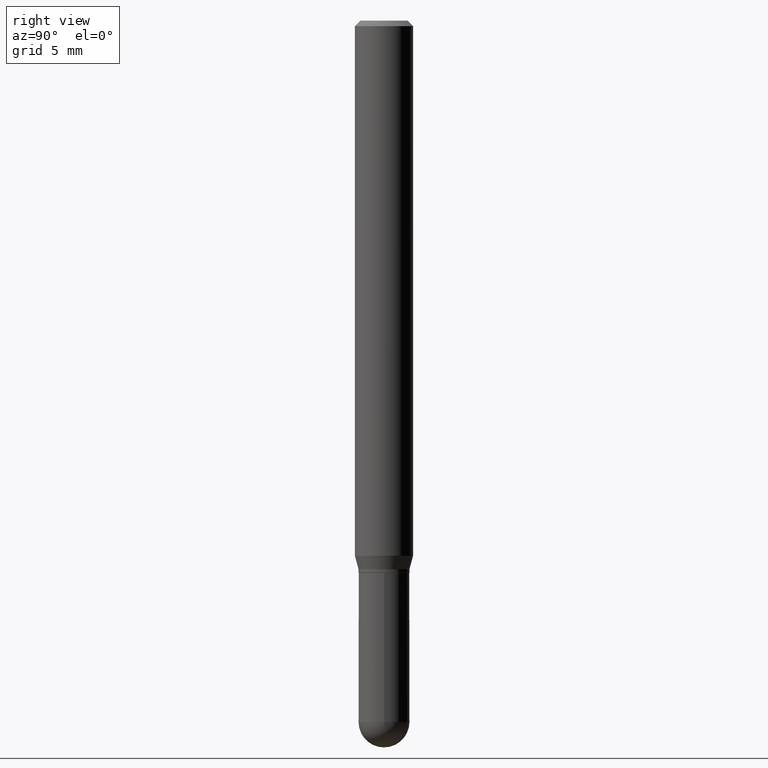
[diagram: clean part render]
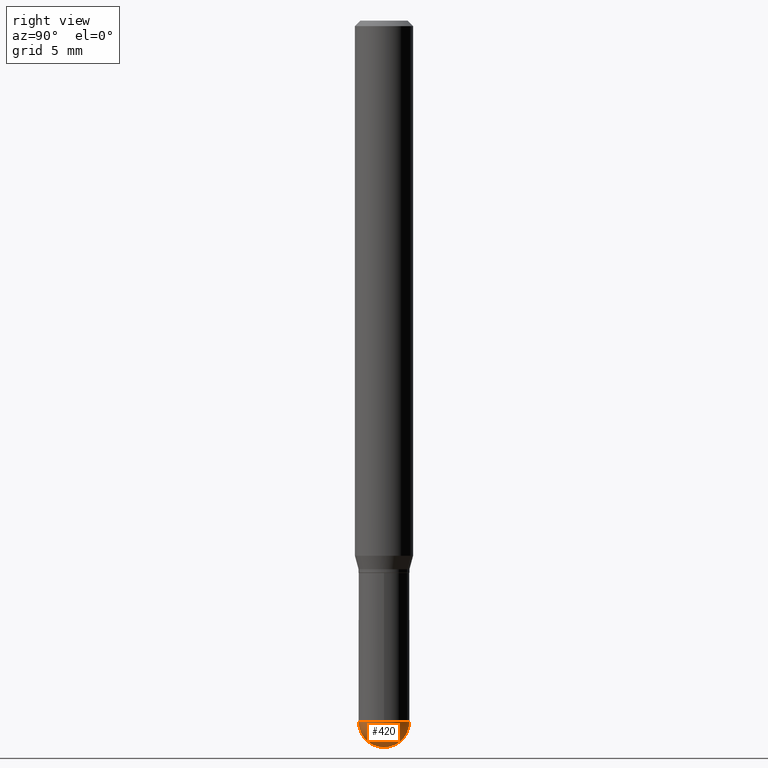
[diagram: same view with one face highlighted and labeled with its STEP entity id]
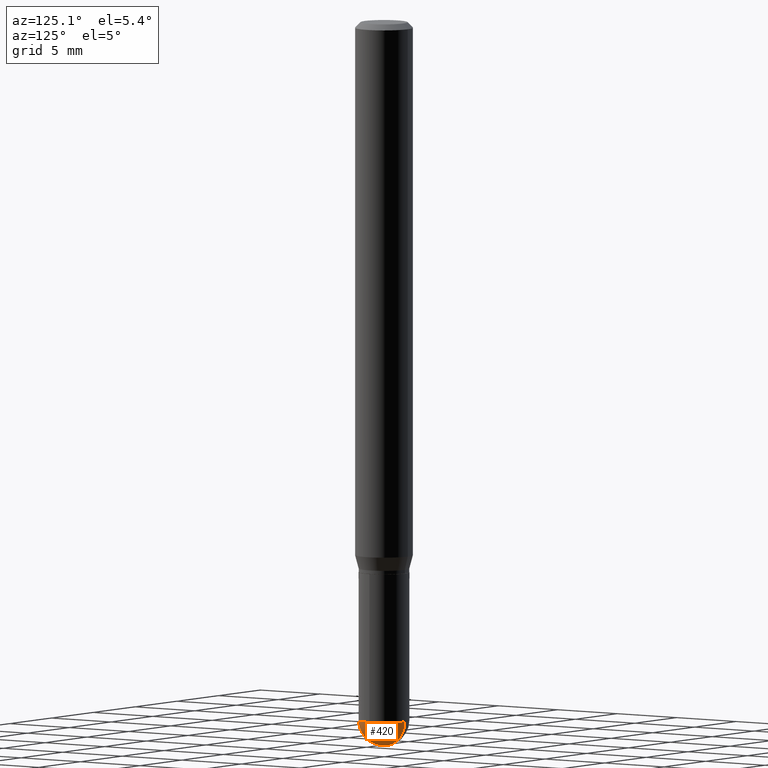
[diagram: same view with one face highlighted and labeled with its STEP entity id]
A machine part, right view. The second image highlights one B-rep face of the part: STEP entity #420.
A second angle (auxiliary view) of the same face is appended — the face is thin or edge-on in the first view.
In plain terms, the highlighted spherical surface has radius 1.7501 mm.
Its self-contained STEP definition (entity closure, byte-faithful):
#15 = AXIS2_PLACEMENT_3D ( 'NONE', #104, #501, #149 ) ;
#30 = VERTEX_POINT ( 'NONE', #32 ) ;
#32 = CARTESIAN_POINT ( 'NONE',  ( 0.06890000000000008618, -6.409137719647418882E-15, -1.899600000000000177 ) ) ;
#37 = VERTEX_POINT ( 'NONE', #353 ) ;
#44 = ORIENTED_EDGE ( 'NONE', *, *, #173, .T. ) ;
#45 = CIRCLE ( 'NONE', #257, 0.06889999999999996128 ) ;
#47 = DIRECTION ( 'NONE',  ( -1.000000000000000000, 7.105427357601001070E-15, -4.926315508542082329E-29 ) ) ;
#53 = AXIS2_PLACEMENT_3D ( 'NONE', #272, #310, #276 ) ;
#73 = DIRECTION ( 'NONE',  ( -7.105427357601001859E-15, -1.000000000000000000, 0.000000000000000000 ) ) ;
#76 = ORIENTED_EDGE ( 'NONE', *, *, #299, .F. ) ;
#96 = CARTESIAN_POINT ( 'NONE',  ( 4.645412544229285965E-29, -6.632417951266439838E-15, -1.899600000000000177 ) ) ;
#104 = CARTESIAN_POINT ( 'NONE',  ( 4.679918503997674770E-29, -6.583003452920844326E-15, -1.899600000000000177 ) ) ;
#129 = AXIS2_PLACEMENT_3D ( 'NONE', #335, #47, #73 ) ;
#144 = DIRECTION ( 'NONE',  ( 6.982962677686265922E-15, 1.000000000000000000, 0.000000000000000000 ) ) ;
#149 = DIRECTION ( 'NONE',  ( 6.982962677686265922E-15, 1.000000000000000000, -3.964946289788482474E-15 ) ) ;
#151 = CARTESIAN_POINT ( 'NONE',  ( 4.679918503997674770E-29, -6.583003452920844326E-15, -1.899600000000000177 ) ) ;
#161 = EDGE_LOOP ( 'NONE', ( #320, #44, #186, #76 ) ) ;
#173 = EDGE_CURVE ( 'NONE', #438, #325, #45, .T. ) ;
#186 = ORIENTED_EDGE ( 'NONE', *, *, #285, .F. ) ;
#225 = DIRECTION ( 'NONE',  ( 1.000000000000000000, -6.982962677686273021E-15, 0.000000000000000000 ) ) ;
#245 = CARTESIAN_POINT ( 'NONE',  ( 4.851357352610053575E-29, -6.819347608944073688E-15, -1.968500000000000139 ) ) ;
#253 = EDGE_CURVE ( 'NONE', #438, #37, #473, .T. ) ;
#257 = AXIS2_PLACEMENT_3D ( 'NONE', #151, #431, #144 ) ;
#262 = DIRECTION ( 'NONE',  ( -2.445468806185136597E-29, 3.491481338843145583E-15, 1.000000000000000000 ) ) ;
#264 = FACE_OUTER_BOUND ( 'NONE', #161, .T. ) ;
#272 = CARTESIAN_POINT ( 'NONE',  ( 4.645412544229285965E-29, -6.632417951266439838E-15, -1.899600000000000177 ) ) ;
#276 = DIRECTION ( 'NONE',  ( 1.000000000000000000, -6.982962677686273021E-15, 0.000000000000000000 ) ) ;
#285 = EDGE_CURVE ( 'NONE', #30, #325, #448, .T. ) ;
#288 = CIRCLE ( 'NONE', #53, 0.06890000000000007230 ) ;
#299 = EDGE_CURVE ( 'NONE', #37, #30, #288, .T. ) ;
#310 = DIRECTION ( 'NONE',  ( -2.445468806185136597E-29, 3.491481338843145583E-15, 1.000000000000000000 ) ) ;
#320 = ORIENTED_EDGE ( 'NONE', *, *, #253, .F. ) ;
#325 = VERTEX_POINT ( 'NONE', #455 ) ;
#335 = CARTESIAN_POINT ( 'NONE',  ( 4.679918503997674770E-29, -6.583003452920844326E-15, -1.899600000000000177 ) ) ;
#353 = CARTESIAN_POINT ( 'NONE',  ( -4.895639449386624073E-16, -0.06890000000000662261, -1.899599999999999955 ) ) ;
#420 = ADVANCED_FACE ( 'NONE', ( #264 ), #457, .T. ) ;
#431 = DIRECTION ( 'NONE',  ( 1.000000000000000000, -6.982962677686265922E-15, 4.883557194083112340E-29 ) ) ;
#438 = VERTEX_POINT ( 'NONE', #245 ) ;
#442 = AXIS2_PLACEMENT_3D ( 'NONE', #96, #262, #225 ) ;
#448 = CIRCLE ( 'NONE', #442, 0.06890000000000007230 ) ;
#455 = CARTESIAN_POINT ( 'NONE',  ( 4.811261284926304785E-16, 0.06889999999999341096, -1.899600000000000399 ) ) ;
#457 = SPHERICAL_SURFACE ( 'NONE', #15, 0.06889999999999996128 ) ;
#473 = CIRCLE ( 'NONE', #129, 0.06889999999999996128 ) ;
#501 = DIRECTION ( 'NONE',  ( -1.000000000000000000, 6.982962677686265922E-15, -4.883557194083112901E-29 ) ) ;